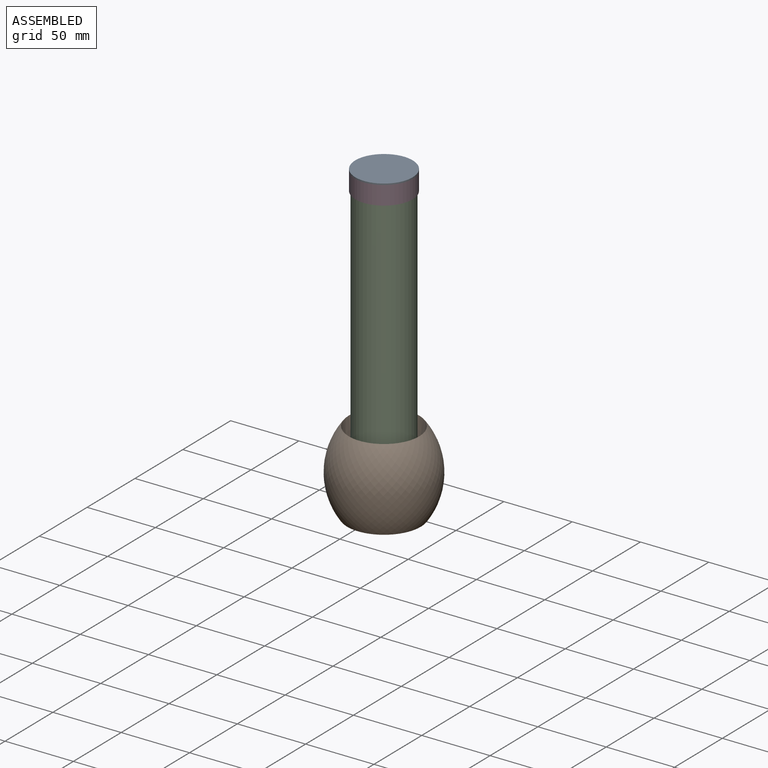
[diagram: assembled view]
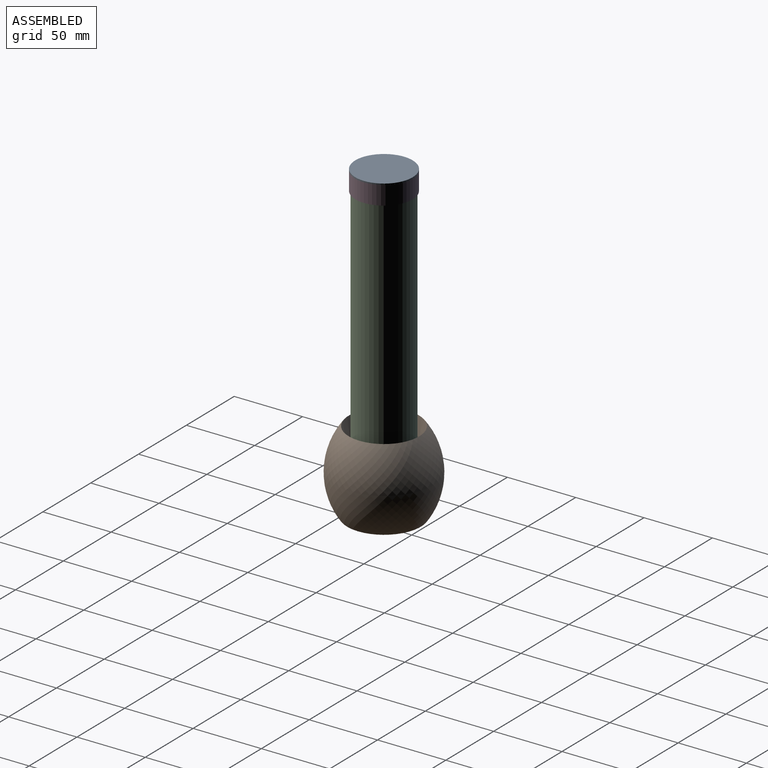
[diagram: assembled view, second angle]
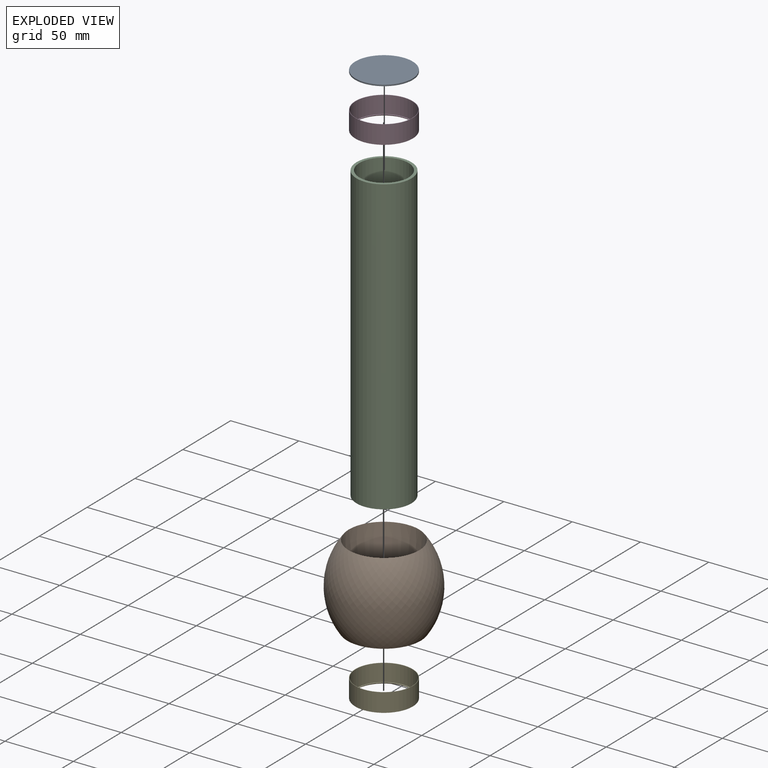
[diagram: exploded view]
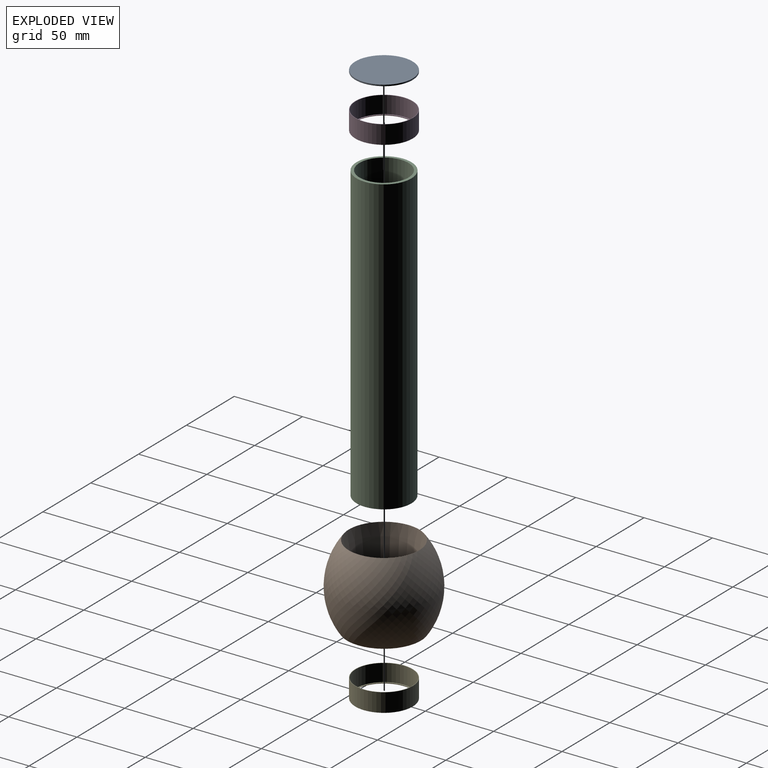
[diagram: exploded view, second angle]
ASSEMBLY  parts=5 mates=4
PART A: 3 faces, bbox 42x42x1 mm
  f0: cylinder r=21mm len=42mm, axis (0,0,1), area 131.9mm2, adj f1,f2
  f1: plane 42x42mm, normal (0,0,-1), area 1385.4mm2, adj f0
  f2: plane 42x42mm, normal (0,0,1), area 1385.4mm2, adj f0
PART B: 5 faces, bbox 72.4x72.4x59.4 mm
  f0: cone r=21.56mm half-angle=15.2deg, axis (0,0,-1), area 2873.3mm2, adj f1,f4
  f1: plane 54.07x54.07mm, normal (0,0,-1), area 836.6mm2, adj f0,f2
  f2: revolved ~72.4x72.4mm, area 13157.3mm2, adj f1,f3
  f3: cone r=21.56mm half-angle=6.8deg, axis (0,0,1), area 5285.4mm2, adj f2,f4
  f4: plane 43.11x43.11mm, normal (0,0,1), area 752.9mm2, adj f0,f3
PART C: 4 faces, bbox 40.2x40.2x215 mm
  f0: cone r=20.1mm half-angle=24.8deg, axis (0,0,-1), area 598.5mm2, adj f1,f3
  f1: cylinder r=20.1mm len=215mm, axis (0,0,-1), area 27152.3mm2, adj f0,f2
  f2: cone r=18mm half-angle=89deg, axis (0,0,-1), area 251.4mm2, adj f1,f3
  f3: cylinder r=18mm len=210.5mm, axis (0,0,-1), area 23807mm2, adj f0,f2
PART D: 6 faces, bbox 42x42x13.6 mm
  f0: cone r=20.7mm half-angle=48.6deg, axis (0,0,-1), area 169.3mm2, adj f1,f5
  f1: plane 42x42mm, normal (0,0,-1), area 39.2mm2, adj f0,f2
  f2: cylinder r=21mm len=42mm, axis (0,0,-1), area 1794.7mm2, adj f1,f3
  f3: cone r=20.7mm half-angle=86.4deg, axis (0,0,1), area 39.3mm2, adj f2,f4
  f4: cylinder r=20.7mm len=41.41mm, axis (0,0,-1), area 1651.9mm2, adj f3,f5
  f5: plane 41.41x41.41mm, normal (0,0,1), area 126.9mm2, adj f0,f4
PART E: same geometry as D
PLACE A t=(46.11,-111.12,-11.44)mm
PLACE B t=(65.65,-76.23,-239.19)mm
PLACE C t=(-24.19,-76.23,-122.27)mm
PLACE D t=(-2.33,-76.23,-45.21)mm
PLACE E t=(-2.33,-76.23,-260.2)mm
MATE fastened B.f0 <-> E.f0  axis (0,0,-1) through (5.72,-76.23,-241)mm
MATE fastened E.f0 <-> C.f0  axis (0,0,-1) through (5.72,-76.23,-227.42)mm
MATE fastened A.f0 <-> D.f0  axis (0,0,-1) through (5.72,-76.23,-12.44)mm
MATE fastened D.f0 <-> C.f0  axis (0,0,-1) through (5.72,-76.23,-12.42)mm
